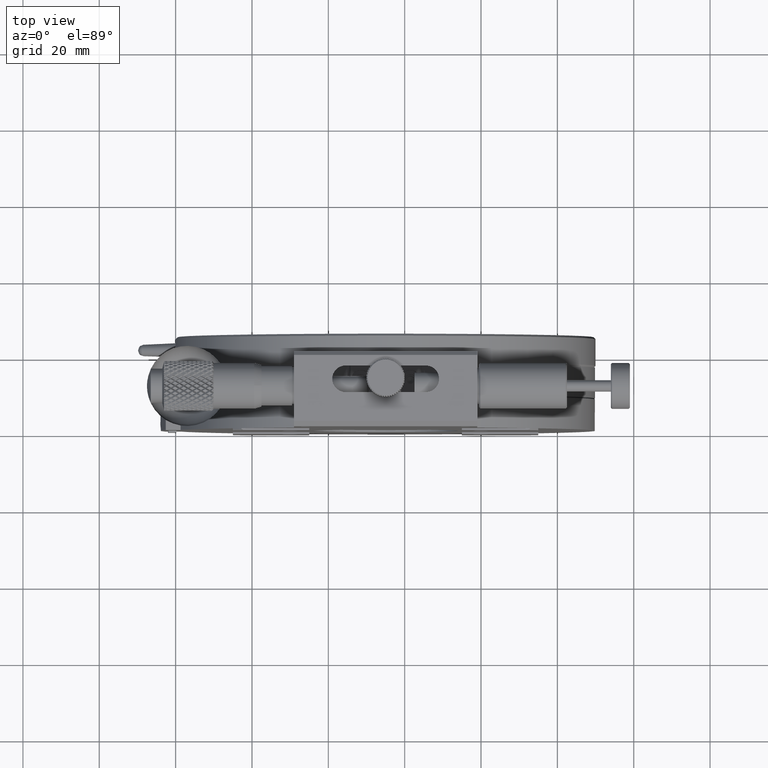
[diagram: clean part render]
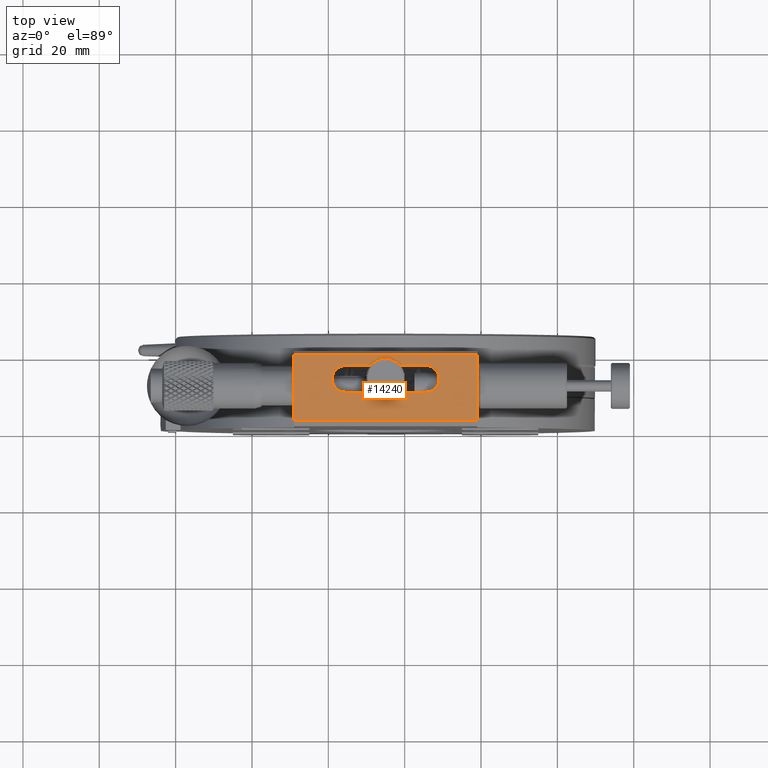
[diagram: same view with one face highlighted and labeled with its STEP entity id]
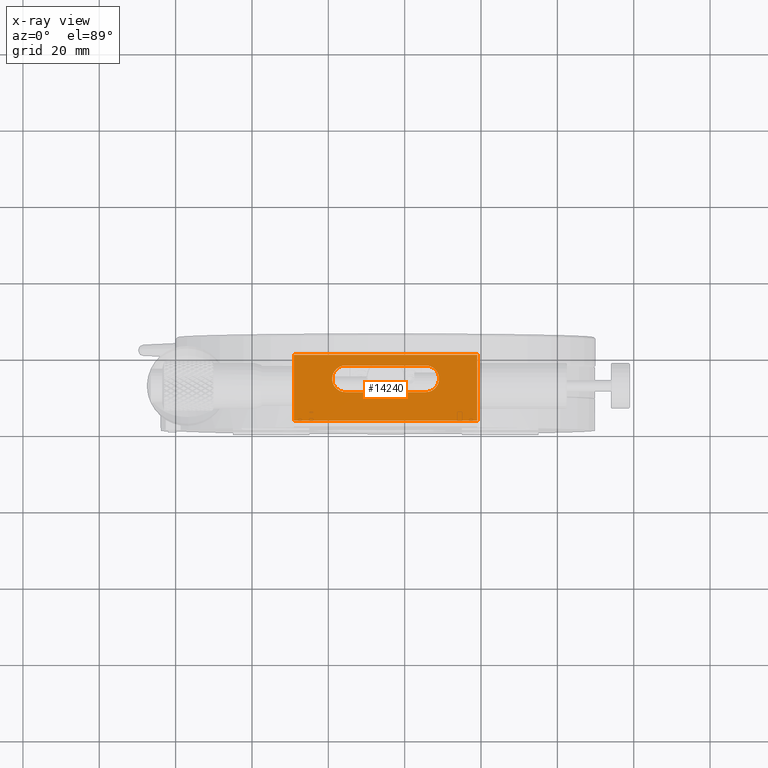
[diagram: x-ray of the same camera — body ghosted, the highlighted face saturated]
A machine part, top view. The second image highlights one B-rep face of the part: STEP entity #14240.
The next image is the same camera in x-ray: the body ghosted, the highlighted face saturated — about 0% of this face is hidden behind the body in this view.
In plain terms, the highlighted planar face has unit normal (0, 0, -1).
Its self-contained STEP definition (entity closure, byte-faithful):
#2725 = DIRECTION ( 'NONE',  ( 1.000000000000000000, -0.000000000000000000, 0.000000000000000000 ) ) ;
#3815 = CARTESIAN_POINT ( 'NONE',  ( 79.00000000000000000, 19.19999999999999929, 14.00000000000000000 ) ) ;
#4714 = FACE_OUTER_BOUND ( 'NONE', #15831, .T. ) ;
#5635 = VECTOR ( 'NONE', #26138, 1000.000000000000000 ) ;
#6557 = ORIENTED_EDGE ( 'NONE', *, *, #76717, .F. ) ;
#9721 = DIRECTION ( 'NONE',  ( 1.000000000000000000, -0.000000000000000000, 0.000000000000000000 ) ) ;
#9737 = EDGE_CURVE ( 'NONE', #48268, #84111, #78290, .T. ) ;
#10029 = LINE ( 'NONE', #31645, #59090 ) ;
#11412 = LINE ( 'NONE', #39449, #51230 ) ;
#11932 = CARTESIAN_POINT ( 'NONE',  ( 65.50000000000000000, 16.39999999999999858, 14.00000000000000000 ) ) ;
#14029 = VERTEX_POINT ( 'NONE', #22236 ) ;
#14240 = ADVANCED_FACE ( 'NONE', ( #4714, #32767 ), #59934, .F. ) ;
#15831 = EDGE_LOOP ( 'NONE', ( #78723, #53148, #65049, #71992 ) ) ;
#17244 = DIRECTION ( 'NONE',  ( 0.000000000000000000, 0.000000000000000000, 1.000000000000000000 ) ) ;
#19139 = LINE ( 'NONE', #68391, #37166 ) ;
#19326 = VERTEX_POINT ( 'NONE', #73979 ) ;
#19896 = EDGE_CURVE ( 'NONE', #48268, #14029, #19139, .T. ) ;
#20043 = EDGE_CURVE ( 'NONE', #66970, #60137, #35200, .T. ) ;
#21537 = CIRCLE ( 'NONE', #86250, 3.500000000000016875 ) ;
#22236 = CARTESIAN_POINT ( 'NONE',  ( 31.00000000000000000, 1.899999999999989919, 14.00000000000000000 ) ) ;
#23113 = DIRECTION ( 'NONE',  ( 1.000000000000000000, 0.000000000000000000, 0.000000000000000000 ) ) ;
#26138 = DIRECTION ( 'NONE',  ( -1.000000000000000000, 0.000000000000000000, -0.000000000000000000 ) ) ;
#26325 = VECTOR ( 'NONE', #9721, 1000.000000000000000 ) ;
#29607 = AXIS2_PLACEMENT_3D ( 'NONE', #60843, #88928, #75115 ) ;
#31645 = CARTESIAN_POINT ( 'NONE',  ( 79.00000000000000000, 1.899999999999989919, 14.00000000000000000 ) ) ;
#32767 = FACE_BOUND ( 'NONE', #67272, .T. ) ;
#35200 = LINE ( 'NONE', #48594, #38607 ) ;
#35521 = VERTEX_POINT ( 'NONE', #37741 ) ;
#37166 = VECTOR ( 'NONE', #90010, 1000.000000000000000 ) ;
#37741 = CARTESIAN_POINT ( 'NONE',  ( 79.00000000000000000, 1.899999999999989919, 14.00000000000000000 ) ) ;
#38607 = VECTOR ( 'NONE', #63294, 1000.000000000000000 ) ;
#38947 = EDGE_CURVE ( 'NONE', #60137, #73595, #21537, .T. ) ;
#39449 = CARTESIAN_POINT ( 'NONE',  ( 79.00000000000000000, 0.000000000000000000, 14.00000000000000000 ) ) ;
#41459 = EDGE_CURVE ( 'NONE', #14029, #35521, #10029, .T. ) ;
#43837 = DIRECTION ( 'NONE',  ( 0.000000000000000000, 0.000000000000000000, 1.000000000000000000 ) ) ;
#44746 = CARTESIAN_POINT ( 'NONE',  ( 65.50000000000000000, 12.90000000000000036, 14.00000000000000000 ) ) ;
#45318 = DIRECTION ( 'NONE',  ( 1.000000000000000000, 0.000000000000000000, 0.000000000000000000 ) ) ;
#45943 = DIRECTION ( 'NONE',  ( 0.000000000000000000, -1.000000000000000000, -0.000000000000000000 ) ) ;
#46690 = CARTESIAN_POINT ( 'NONE',  ( 44.50000000000000000, 9.399999999999995026, 14.00000000000000000 ) ) ;
#46870 = LINE ( 'NONE', #52410, #5635 ) ;
#48207 = AXIS2_PLACEMENT_3D ( 'NONE', #67845, #17244, #45318 ) ;
#48268 = VERTEX_POINT ( 'NONE', #56905 ) ;
#48594 = CARTESIAN_POINT ( 'NONE',  ( 79.00000000000000000, 9.400000000000000355, 14.00000000000000000 ) ) ;
#51230 = VECTOR ( 'NONE', #45943, 1000.000000000000000 ) ;
#52410 = CARTESIAN_POINT ( 'NONE',  ( 79.00000000000000000, 16.39999999999999858, 14.00000000000000000 ) ) ;
#53148 = ORIENTED_EDGE ( 'NONE', *, *, #79825, .F. ) ;
#55654 = ORIENTED_EDGE ( 'NONE', *, *, #74220, .F. ) ;
#56905 = CARTESIAN_POINT ( 'NONE',  ( 30.99999999999998934, 19.19999999999999929, 14.00000000000000000 ) ) ;
#57135 = CARTESIAN_POINT ( 'NONE',  ( 79.00000000000000000, 19.19999999999999929, 14.00000000000000000 ) ) ;
#59090 = VECTOR ( 'NONE', #2725, 1000.000000000000000 ) ;
#59934 = PLANE ( 'NONE',  #29607 ) ;
#60137 = VERTEX_POINT ( 'NONE', #85492 ) ;
#60843 = CARTESIAN_POINT ( 'NONE',  ( 79.00000000000000000, 19.19999999999999929, 14.00000000000000000 ) ) ;
#63294 = DIRECTION ( 'NONE',  ( 1.000000000000000000, -0.000000000000000000, 0.000000000000000000 ) ) ;
#65049 = ORIENTED_EDGE ( 'NONE', *, *, #9737, .F. ) ;
#66970 = VERTEX_POINT ( 'NONE', #46690 ) ;
#67272 = EDGE_LOOP ( 'NONE', ( #6557, #87865, #75200, #55654 ) ) ;
#67845 = CARTESIAN_POINT ( 'NONE',  ( 44.50000000000000000, 12.90000000000000036, 14.00000000000000000 ) ) ;
#68391 = CARTESIAN_POINT ( 'NONE',  ( 31.00000000000000000, 0.000000000000000000, 14.00000000000000000 ) ) ;
#71726 = CIRCLE ( 'NONE', #48207, 3.500000000000010214 ) ;
#71992 = ORIENTED_EDGE ( 'NONE', *, *, #19896, .T. ) ;
#73595 = VERTEX_POINT ( 'NONE', #11932 ) ;
#73979 = CARTESIAN_POINT ( 'NONE',  ( 44.50000000000000000, 16.40000000000000568, 14.00000000000000000 ) ) ;
#74220 = EDGE_CURVE ( 'NONE', #19326, #66970, #71726, .T. ) ;
#75115 = DIRECTION ( 'NONE',  ( -1.000000000000000000, 0.000000000000000000, -0.000000000000000000 ) ) ;
#75200 = ORIENTED_EDGE ( 'NONE', *, *, #20043, .F. ) ;
#76717 = EDGE_CURVE ( 'NONE', #73595, #19326, #46870, .T. ) ;
#78290 = LINE ( 'NONE', #57135, #26325 ) ;
#78723 = ORIENTED_EDGE ( 'NONE', *, *, #41459, .T. ) ;
#79825 = EDGE_CURVE ( 'NONE', #84111, #35521, #11412, .T. ) ;
#84111 = VERTEX_POINT ( 'NONE', #3815 ) ;
#85492 = CARTESIAN_POINT ( 'NONE',  ( 65.50000000000000000, 9.399999999999995026, 14.00000000000000000 ) ) ;
#86250 = AXIS2_PLACEMENT_3D ( 'NONE', #44746, #43837, #23113 ) ;
#87865 = ORIENTED_EDGE ( 'NONE', *, *, #38947, .F. ) ;
#88928 = DIRECTION ( 'NONE',  ( 0.000000000000000000, 0.000000000000000000, -1.000000000000000000 ) ) ;
#90010 = DIRECTION ( 'NONE',  ( 0.000000000000000000, -1.000000000000000000, -0.000000000000000000 ) ) ;